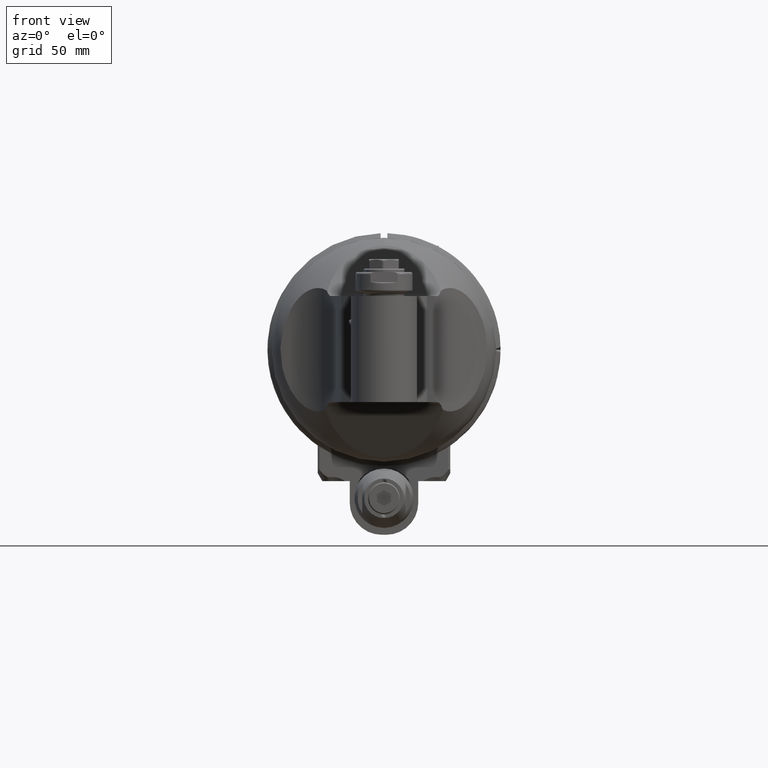
[diagram: clean part render]
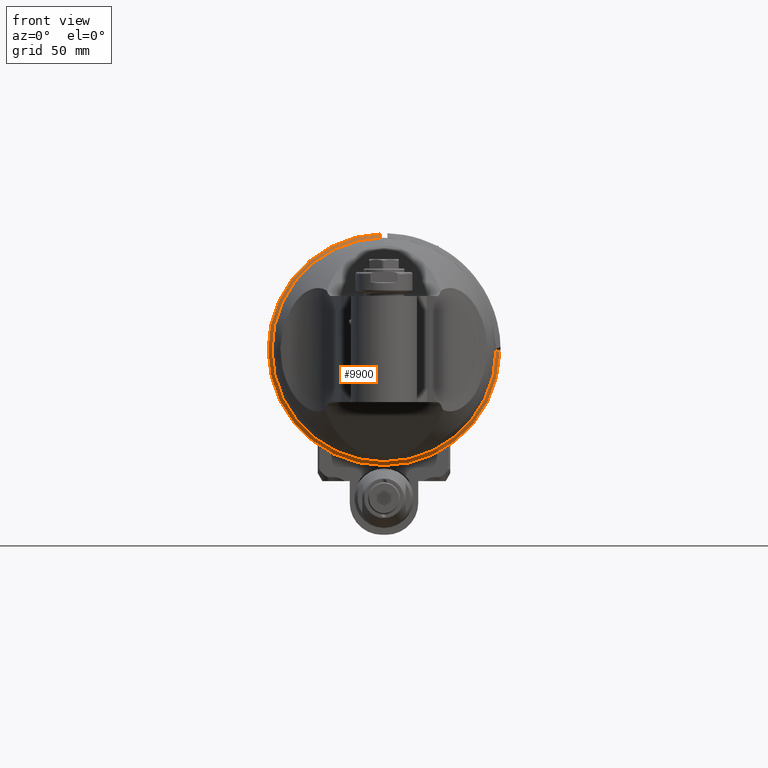
[diagram: same view with one face highlighted and labeled with its STEP entity id]
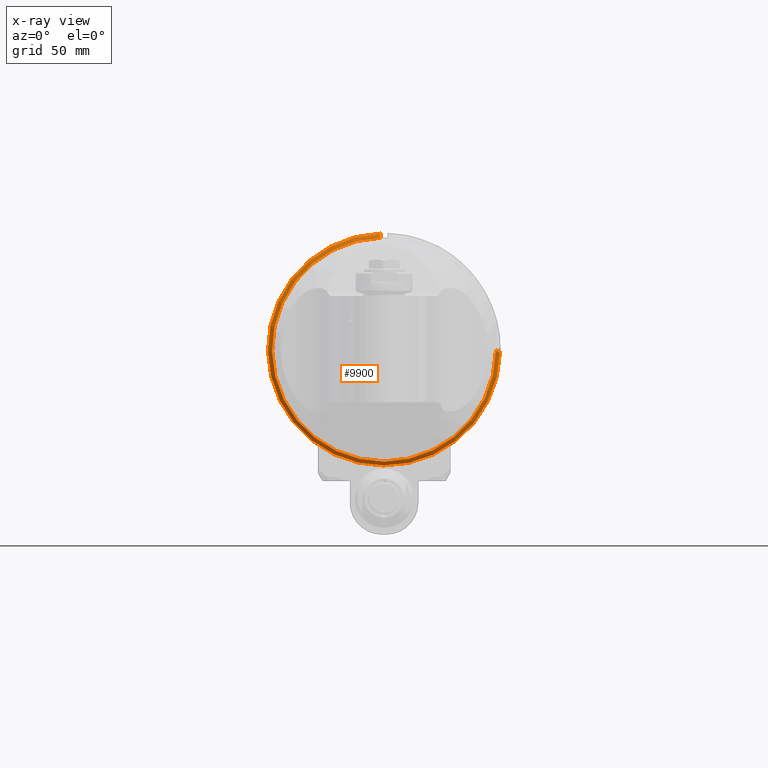
[diagram: x-ray of the same camera — body ghosted, the highlighted face saturated]
A machine part, front view. The second image highlights one B-rep face of the part: STEP entity #9900.
The next image is the same camera in x-ray: the body ghosted, the highlighted face saturated — about 0% of this face is hidden behind the body in this view.
In plain terms, the highlighted conical surface has half-angle 45 deg.
Its self-contained STEP definition (entity closure, byte-faithful):
#46=(
BOUNDED_CURVE()
B_SPLINE_CURVE(2,(#18395,#18396,#18397),.UNSPECIFIED.,.F.,.F.)
B_SPLINE_CURVE_WITH_KNOTS((3,3),(0.508727233088621,0.764831043681162),
 .UNSPECIFIED.)
CURVE()
GEOMETRIC_REPRESENTATION_ITEM()
RATIONAL_B_SPLINE_CURVE((1.00136985167552,1.00128834032644,1.00077759520502))
REPRESENTATION_ITEM('')
);
#47=(
BOUNDED_CURVE()
B_SPLINE_CURVE(2,(#18413,#18414,#18415),.UNSPECIFIED.,.F.,.F.)
B_SPLINE_CURVE_WITH_KNOTS((3,3),(-5.67826879781545,-5.35900055385126),
 .UNSPECIFIED.)
CURVE()
GEOMETRIC_REPRESENTATION_ITEM()
RATIONAL_B_SPLINE_CURVE((1.00308912931936,1.00557756147216,1.00777639680923))
REPRESENTATION_ITEM('')
);
#162=CONICAL_SURFACE('',#10935,49.85355339059,0.785398163397448);
#1021=CIRCLE('',#10931,49.);
#1024=CIRCLE('',#10936,50.70710678119);
#1568=FACE_OUTER_BOUND('',#2238,.T.);
#2238=EDGE_LOOP('',(#8013,#8014,#8015,#8016));
#4533=VERTEX_POINT('',#18392);
#4534=VERTEX_POINT('',#18394);
#4536=VERTEX_POINT('',#18403);
#4539=VERTEX_POINT('',#18412);
#5772=EDGE_CURVE('',#4534,#4533,#46,.T.);
#5777=EDGE_CURVE('',#4536,#4533,#1021,.T.);
#5780=EDGE_CURVE('',#4536,#4539,#47,.T.);
#5781=EDGE_CURVE('',#4534,#4539,#1024,.T.);
#8013=ORIENTED_EDGE('',*,*,#5772,.T.);
#8014=ORIENTED_EDGE('',*,*,#5777,.F.);
#8015=ORIENTED_EDGE('',*,*,#5780,.T.);
#8016=ORIENTED_EDGE('',*,*,#5781,.F.);
#9900=ADVANCED_FACE('',(#1568),#162,.T.);
#10931=AXIS2_PLACEMENT_3D('',#18405,#13245,#13246);
#10935=AXIS2_PLACEMENT_3D('',#18411,#13253,#13254);
#10936=AXIS2_PLACEMENT_3D('',#18416,#13255,#13256);
#13245=DIRECTION('center_axis',(0.,-1.,0.));
#13246=DIRECTION('ref_axis',(-0.0306122448979601,0.,0.999531335407904));
#13253=DIRECTION('center_axis',(0.,1.,0.));
#13254=DIRECTION('ref_axis',(0.,0.,-1.));
#13255=DIRECTION('center_axis',(0.,1.,0.));
#13256=DIRECTION('ref_axis',(0.,0.,-1.));
#18392=CARTESIAN_POINT('',(48.99810120193,0.,-0.4313682945262));
#18394=CARTESIAN_POINT('',(50.69626604881,1.707106781187,-1.048468801146));
#18395=CARTESIAN_POINT('Ctrl Pts',(50.6962660488093,1.70710678118947,-1.04846880114116));
#18396=CARTESIAN_POINT('Ctrl Pts',(49.8301452018414,0.834681228380691,-0.73459892132407));
#18397=CARTESIAN_POINT('Ctrl Pts',(48.9981012019286,2.8585443882932E-12,
-0.431368294522119));
#18403=CARTESIAN_POINT('',(-1.5,0.,48.97703543499));
#18405=CARTESIAN_POINT('Origin',(0.,-5.684341886081E-14,0.));
#18411=CARTESIAN_POINT('Origin',(0.,0.8535533905933,0.));
#18412=CARTESIAN_POINT('',(-1.50000000005422,1.70710677935587,50.6849156843801));
#18413=CARTESIAN_POINT('Ctrl Pts',(-1.5,3.75311690189205E-12,48.9770354349863));
#18414=CARTESIAN_POINT('Ctrl Pts',(-1.5,0.838926273321373,49.8163550676961));
#18415=CARTESIAN_POINT('Ctrl Pts',(-1.5,1.70710677935809,50.6849156843785));
#18416=CARTESIAN_POINT('Origin',(0.,1.707106781187,0.));